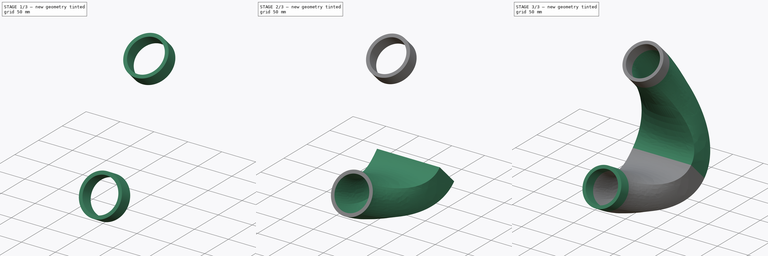
[diagram: build sequence overview — one tinted view per stage of 3, left to right]
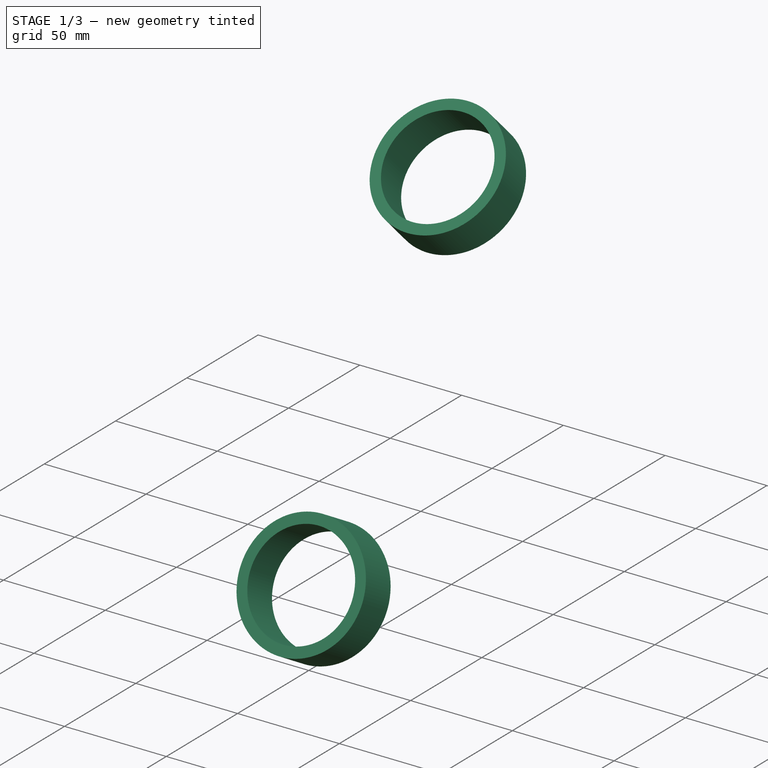
[diagram: stage 1 of 3 — iso view after this stage's code; geometry added in this stage tinted green]
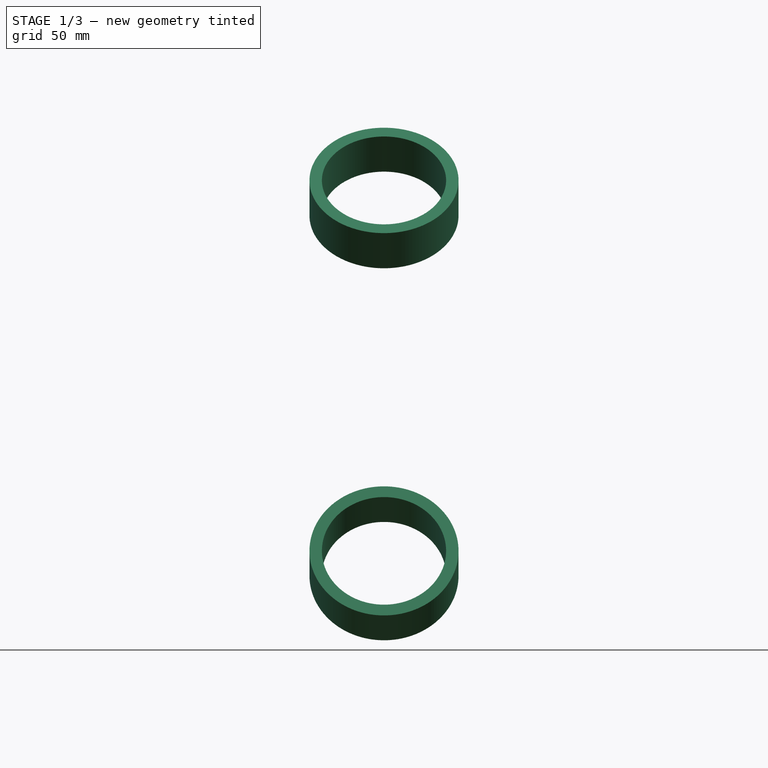
[diagram: stage 1 of 3 — front view after this stage's code; geometry added in this stage tinted green]
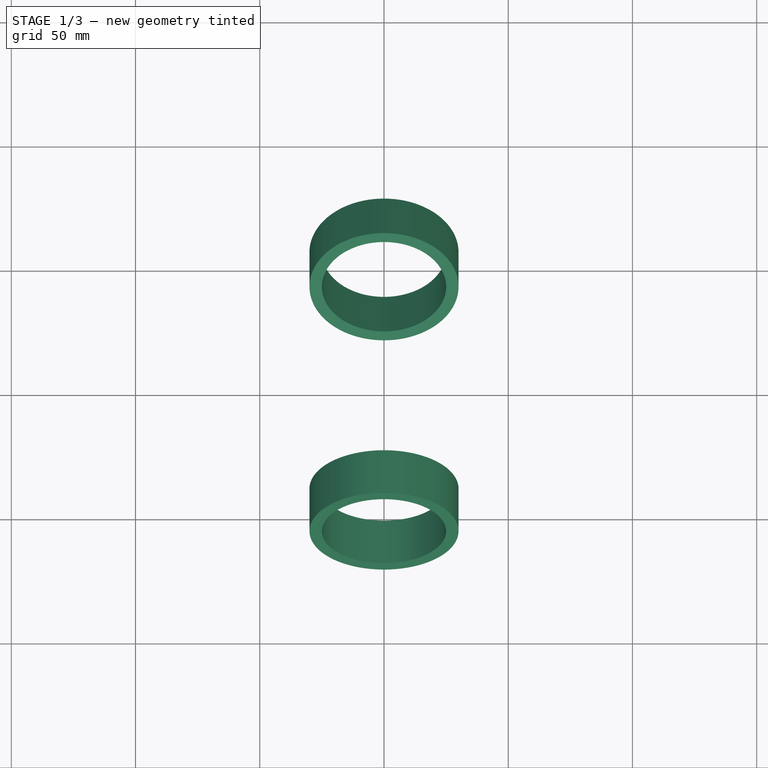
[diagram: stage 1 of 3 — top view after this stage's code; geometry added in this stage tinted green]
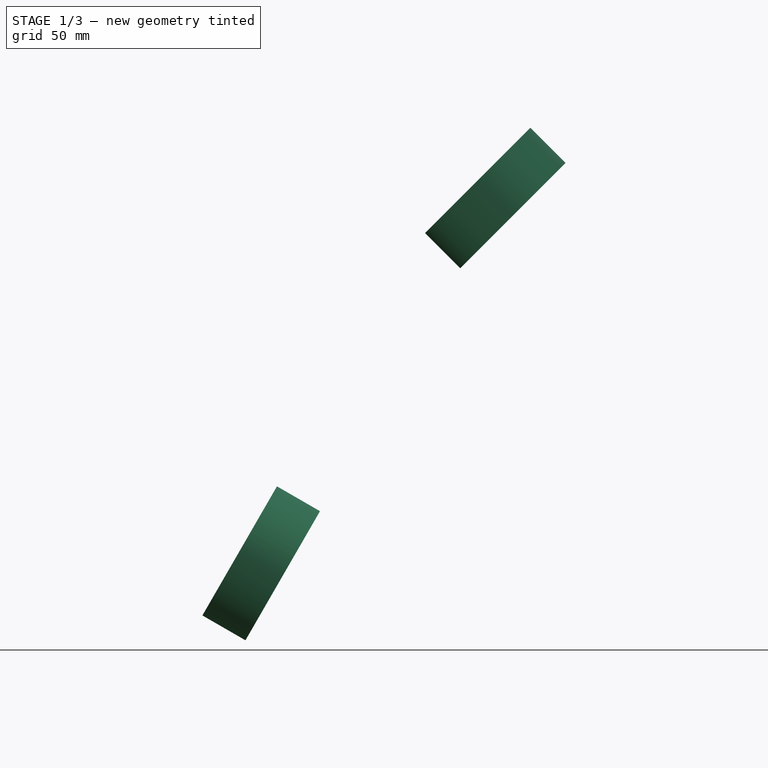
[diagram: stage 1 of 3 — right view after this stage's code; geometry added in this stage tinted green]
FCSTD DOCUMENT  (FreeCAD 0.22R35822 (Git))
Label: blendsolid_test_3
License: Creative Commons Attribution
LicenseURL: http://creativecommons.org/licenses/by/4.0/
objects: Part::Extrusion×3, Sketcher::SketchObject×2, Part::FeaturePython×2, Part::MultiFuse×1
note: 8 computed .brp shape members not serialized (recipe doc carries the construction recipe); baked Part::Feature solids carry a one-line shape summary decoded from their .brp

FEATURE [Part::Extrusion] Extrude001
  Base = -> Sketch001
  Dir = (0,0,1)
  DirMode = 2
  FaceMakerClass = Part::FaceMakerBullseye
  LengthFwd = 20
  LengthRev = 0
  Placement = pos=(0,-138,13.8564) rot=(1,0,0;1.0472rad)
  Solid = true
  Symmetric = false
FEATURE [Part::Extrusion] Extrude002
  Base = -> Sketch001
  Dir = (0,0,1)
  DirMode = 2
  FaceMakerClass = Part::FaceMakerBullseye
  LengthFwd = 20
  LengthRev = 0
  Placement = pos=(0,-45.369,158.813) rot=(-1,0,0;5.49779rad)
  Solid = true
  Symmetric = false
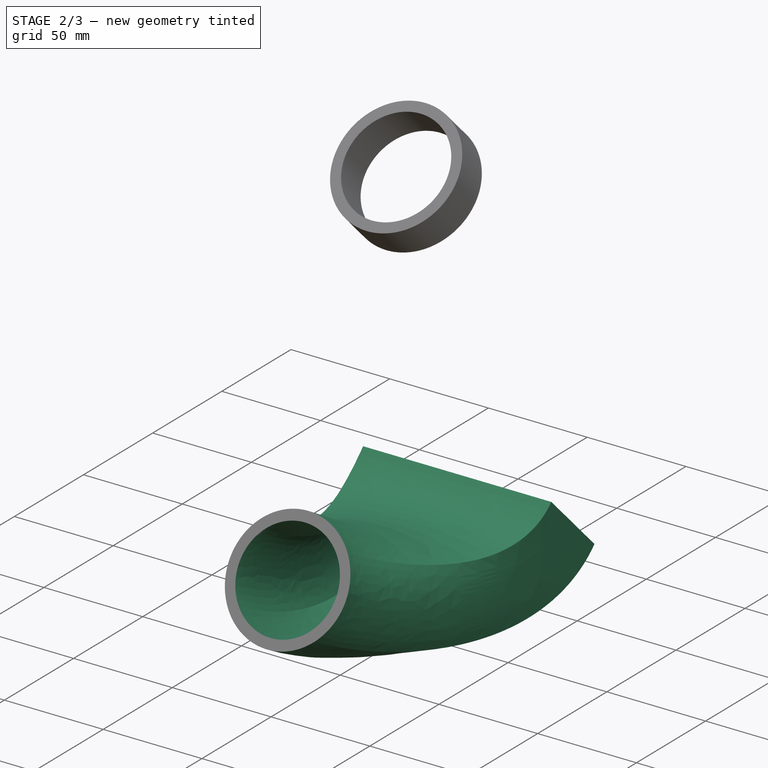
[diagram: stage 2 of 3 — iso view after this stage's code; geometry added in this stage tinted green]
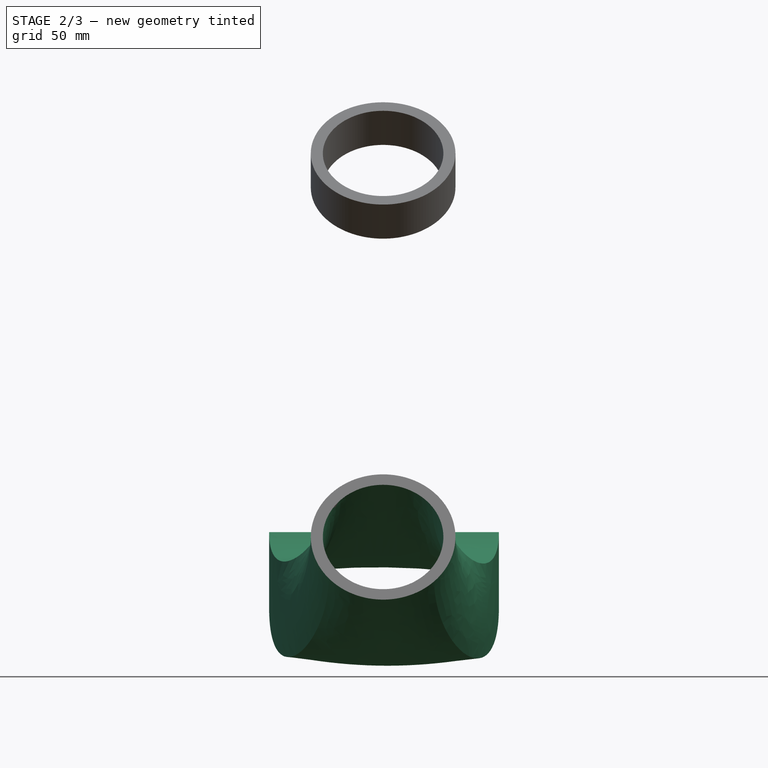
[diagram: stage 2 of 3 — front view after this stage's code; geometry added in this stage tinted green]
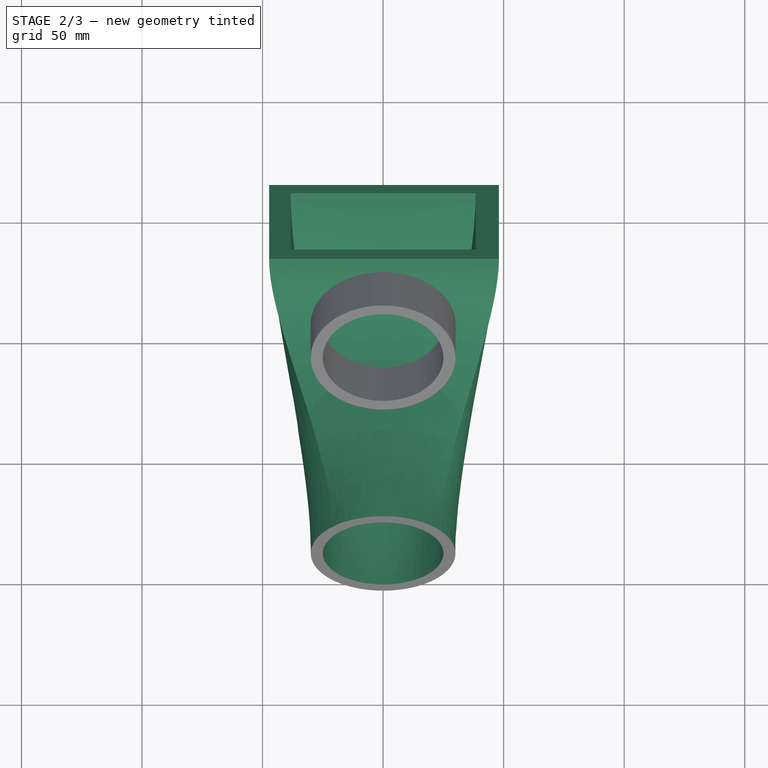
[diagram: stage 2 of 3 — top view after this stage's code; geometry added in this stage tinted green]
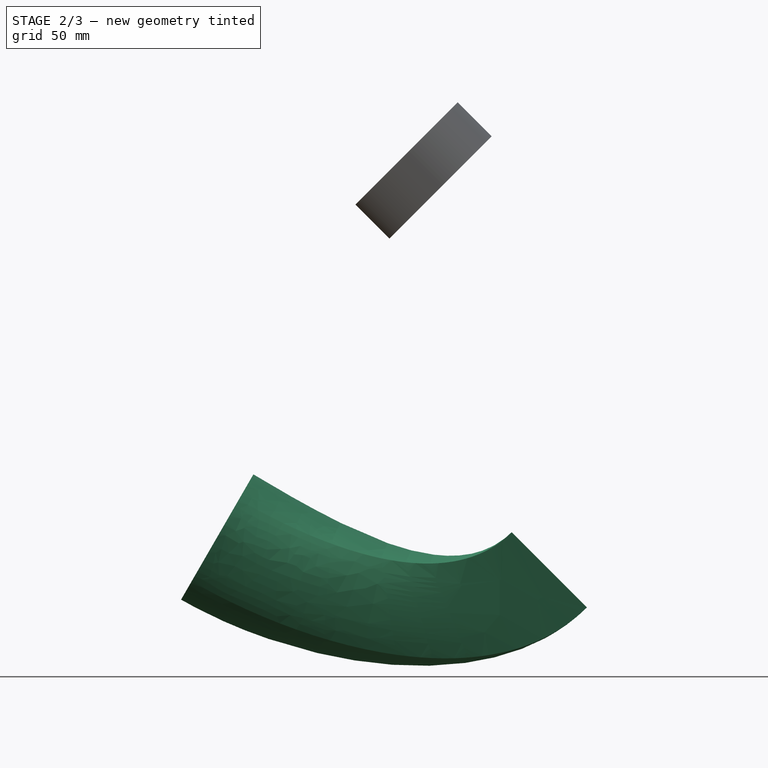
[diagram: stage 2 of 3 — right view after this stage's code; geometry added in this stage tinted green]
FEATURE [Sketcher::SketchObject] Sketch  label="Oval Sketch"
  FullyConstrained = false
  MapMode = 5
  Placement = pos=(0,0,0) rot=(1,0,0;1.5708rad)
  sketch-geometry (10):
    g0: LineSegment StartX=16.7935 StartY=-38.3549 StartZ=0 EndX=16.7935 EndY=38.3549 EndZ=0
    g1: LineSegment StartX=-16.7935 StartY=-38.3549 StartZ=0 EndX=-16.7935 EndY=38.3549 EndZ=0
    g2: LineSegment StartX=-2e-16 StartY=40 StartZ=0 EndX=2e-16 EndY=-40 EndZ=0
    g3: GeomPoint X=0 Y=0 Z=0
    g4: LineSegment StartX=22.4312 StartY=-48.0249 StartZ=0 EndX=22.4312 EndY=47.2883 EndZ=0
    g5: LineSegment StartX=-21.6966 StartY=-48.0249 StartZ=0 EndX=-21.6966 EndY=47.2883 EndZ=0
    g6: LineSegment StartX=-21.6966 StartY=47.2883 StartZ=0 EndX=22.4312 EndY=47.2883 EndZ=0
    g7: LineSegment StartX=-16.7935 StartY=38.3549 StartZ=0 EndX=16.7935 EndY=38.3549 EndZ=0
    g8: LineSegment StartX=-16.7935 StartY=-38.3549 StartZ=0 EndX=16.7935 EndY=-38.3549 EndZ=0
    g9: LineSegment StartX=-21.6966 StartY=-48.0249 StartZ=0 EndX=22.4312 EndY=-48.0249 EndZ=0
  constraints (18):
    c: Vertical(g0)
    c: Coincident(g3,g-1)
    c: Vertical(g4)
    c: Coincident(g6,g5)
    c: Coincident(g6,g4)
    c: Coincident(g7,g1)
    c: Coincident(g7,g0)
    c: Horizontal(g7)
    c: Coincident(g8,g1)
    c: Coincident(g8,g0)
    c: Horizontal(g8)
    c: Coincident(g9,g5)
    c: Coincident(g9,g4)
    c: Horizontal(g6)
    c: Horizontal(g9)
    c: Symmetric(g1,g0,g3)
    c: Vertical(g1)
    c: Vertical(g5)
FEATURE [Sketcher::SketchObject] Sketch001  label="Round Sketch"
  AttachmentOffset = pos=(-27,-45,80) rot=(0,1,0;-0.785398rad)
  FullyConstrained = false
  MapMode = 5
  sketch-geometry (12):
    g0: Circle CenterX=0 CenterY=0 CenterZ=0 NormalX=0 NormalY=0 NormalZ=1 AngleXU=0 Radius=25
    g1: Circle CenterX=0 CenterY=0 CenterZ=0 NormalX=0 NormalY=0 NormalZ=1 AngleXU=0 Radius=30
    g2: ArcOfCircle CenterX=0 CenterY=0 CenterZ=0 NormalX=0 NormalY=0 NormalZ=1 AngleXU=0 Radius=30 StartAngle=0.640705 EndAngle=2.35619
    g3: ArcOfCircle CenterX=0 CenterY=0 CenterZ=0 NormalX=0 NormalY=0 NormalZ=1 AngleXU=0 Radius=30 StartAngle=3.86047 EndAngle=5.49779
    g4: ArcOfCircle CenterX=0 CenterY=0 CenterZ=0 NormalX=0 NormalY=0 NormalZ=1 AngleXU=0 Radius=30 StartAngle=5.49779 EndAngle=6.92389
    g5: ArcOfCircle CenterX=-9.3e-15 CenterY=1.49e-14 CenterZ=0 NormalX=0 NormalY=0 NormalZ=1 AngleXU=0 Radius=25 StartAngle=2.35619 EndAngle=3.82732
    g6: LineSegment StartX=21.2132 StartY=-21.2132 StartZ=0 EndX=-21.2132 EndY=21.2132 EndZ=0
    g7: LineSegment StartX=17.6777 StartY=-17.6777 StartZ=0 EndX=-17.6777 EndY=17.6777 EndZ=0
    g8: ArcOfCircle CenterX=2.6e-15 CenterY=9e-16 CenterZ=0 NormalX=0 NormalY=0 NormalZ=1 AngleXU=0 Radius=30 StartAngle=2.35619 EndAngle=3.86047
    g9: ArcOfCircle CenterX=-9.3e-15 CenterY=1.49e-14 CenterZ=0 NormalX=0 NormalY=0 NormalZ=1 AngleXU=0 Radius=25 StartAngle=0.620465 EndAngle=2.35619
    g10: ArcOfCircle CenterX=0 CenterY=0 CenterZ=0 NormalX=0 NormalY=0 NormalZ=1 AngleXU=0 Radius=25 StartAngle=3.82732 EndAngle=5.49779
    g11: ArcOfCircle CenterX=0 CenterY=0 CenterZ=0 NormalX=0 NormalY=0 NormalZ=1 AngleXU=0 Radius=25 StartAngle=5.49779 EndAngle=6.90365
  constraints (30):
    c: Coincident(g1,g0)
    c: Diameter(g1) = 60
    c: Coincident(g3,g4)
    c: Coincident(g3,g2)
    c: PointOnObject(g7,g0)
    c: Coincident(g0,g-1)
    c: Diameter(g0) = 50
    c: Coincident(g2,g-1)
    c: Coincident(g4,g2)
    c: Coincident(g4,g2)
    c: Coincident(g6,g3)
    c: Coincident(g6,g2)
    c: PointOnObject(g2,g7)
    c: PointOnObject(g2,g6)
    c: PointOnObject(g7,g6)
    c: Coincident(g8,g3)
    c: Coincident(g8,g2)
    c: Angle(g-1,g6) = 2.35619
    c: Coincident(g9,g5)
    c: Coincident(g9,g5)
    c: Equal(g8,g1)
    c: Equal(g5,g0)
    c: Coincident(g5,g7)
    c: Coincident(g10,g2)
    c: Coincident(g11,g2)
    c: Coincident(g10,g5)
    c: Coincident(g10,g7)
    c: Coincident(g11,g10)
    c: Coincident(g11,g9)
    c: PointOnObject(g2,g1)
FEATURE [Part::Extrusion] Extrude
  Base = -> Sketch
  Dir = (0,-1,2e-16)
  DirMode = 2
  FaceMakerClass = Part::FaceMakerBullseye
  LengthFwd = -20
  LengthRev = 0
  Placement = pos=(0,0,0) rot=(-0.357407,0.862856,0.357407;4.56541rad)
  Solid = true
  Symmetric = false
FEATURE [Part::FeaturePython] Blend_Solid001  # WARN: FeaturePython — macro-defined, semantics opaque (R4)
  Algo = 0
  AutoScale = 0
  Continuity1 = 1
  Continuity2 = 1
  Fuse = false
  MatchingShapes = -> [Extrude,Extrude001]
  Offset = (2) [(3,3,-1),(1,0,-1)]
  Samples = 20
  Scale1 = [166.479,156.167,145.7,135.348,125.461,116.472]
  Scale2 = [-135.348,-125.461,-116.472,-166.479,-156.167,-145.7]
  ScaleSamples = 6
  ShapeType = Solid
  Sources = -> [Extrude,Extrude001]
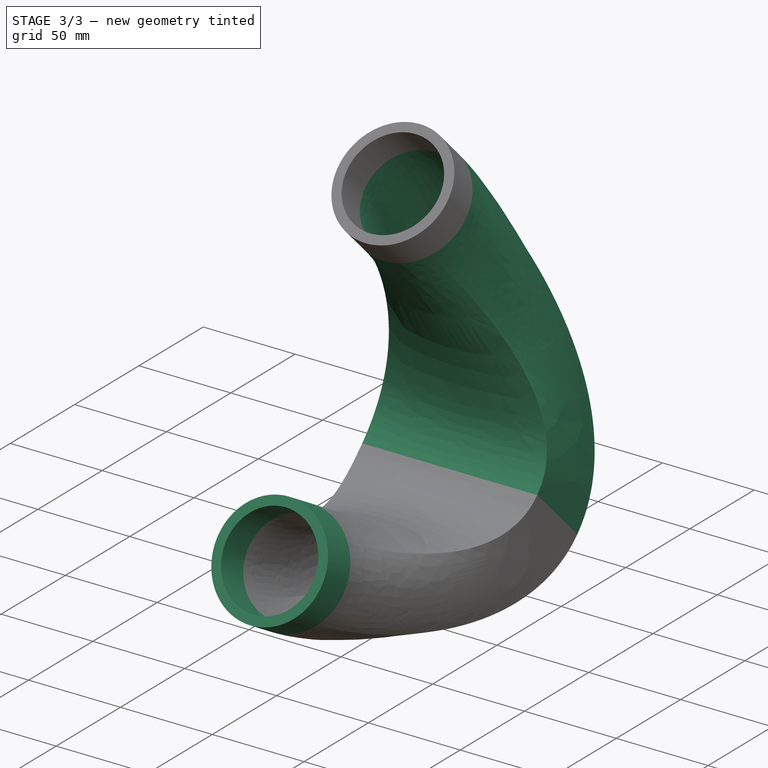
[diagram: stage 3 of 3 — iso view after this stage's code; geometry added in this stage tinted green]
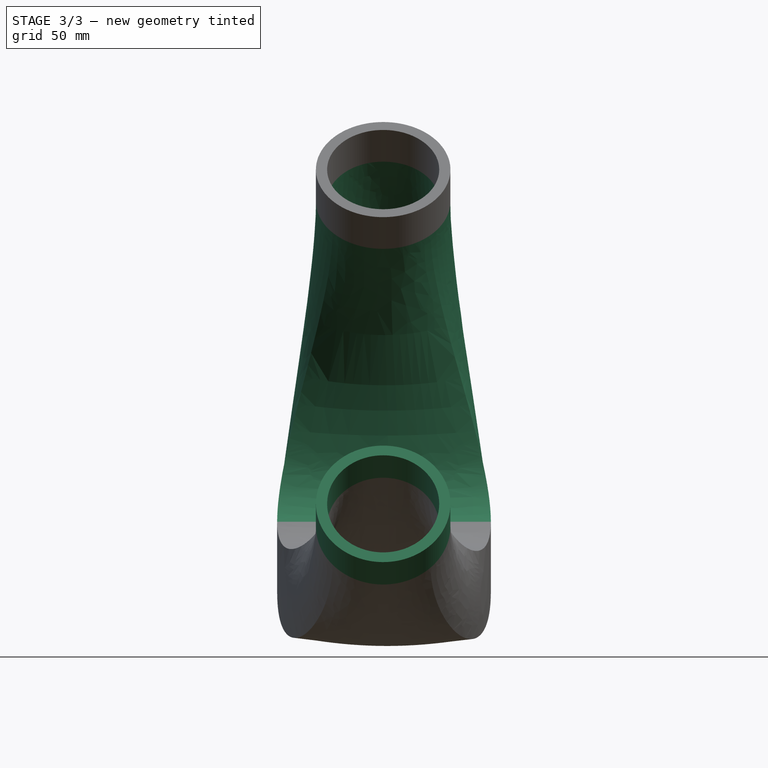
[diagram: stage 3 of 3 — front view after this stage's code; geometry added in this stage tinted green]
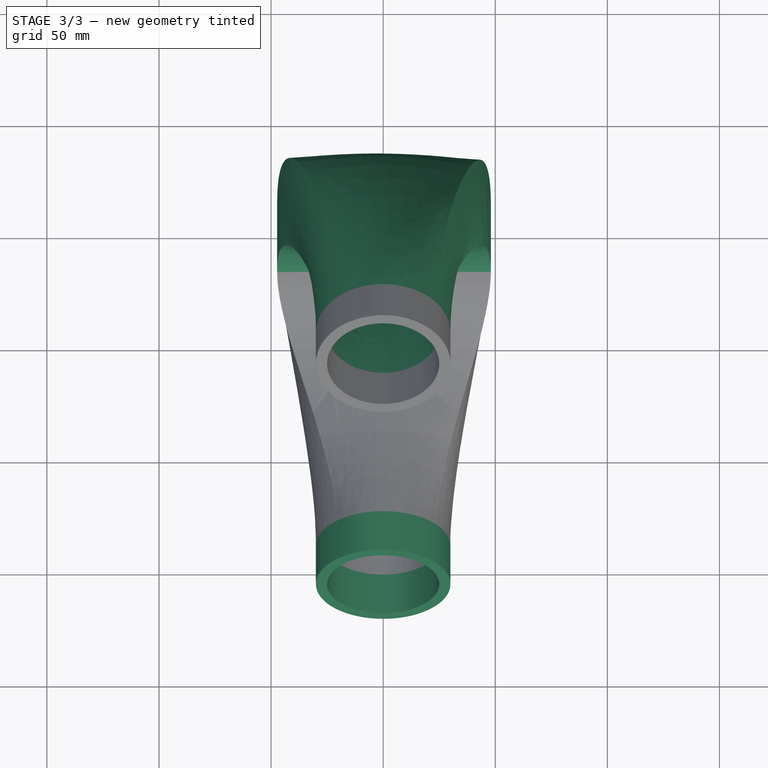
[diagram: stage 3 of 3 — top view after this stage's code; geometry added in this stage tinted green]
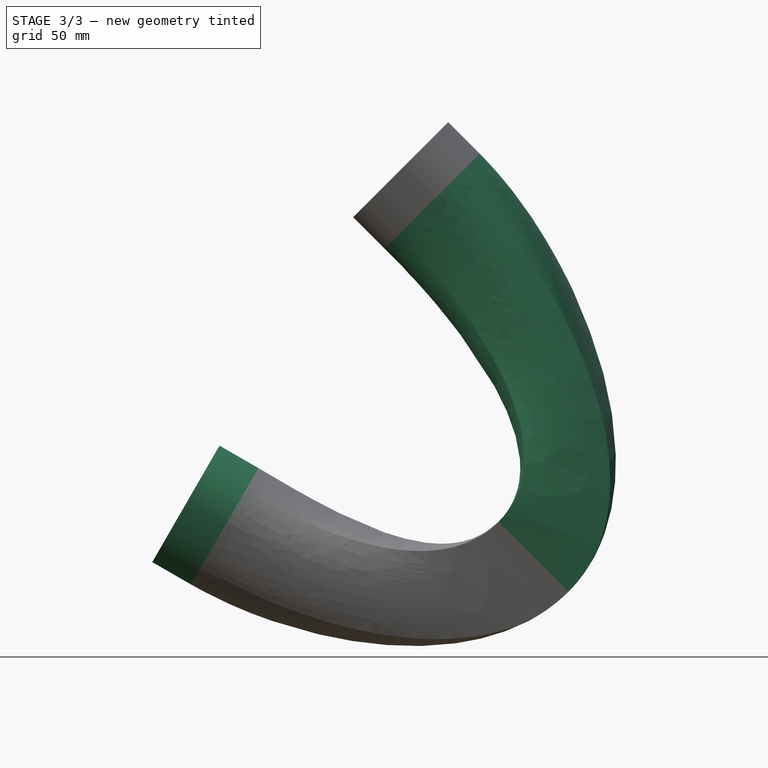
[diagram: stage 3 of 3 — right view after this stage's code; geometry added in this stage tinted green]
FEATURE [Part::FeaturePython] Blend_Solid  # WARN: FeaturePython — macro-defined, semantics opaque (R4)
  AutoScale = 0
  Continuity1 = 1
  Continuity2 = 1
  Fuse = false
  Samples = 20
  Scale1 = [194.394,182.599,170.688,159.019,148.007,138.1]
  Scale2 = [-170.688,-182.599,-194.394,-138.1,-148.007,-159.019]
  ScaleSamples = 6
  ShapeType = Solid
  Sources = -> [Blend_Solid001,Extrude002]
FEATURE [Part::MultiFuse] Fusion
  Shapes = -> [Extrude001,Blend_Solid001,Extrude002,Blend_Solid]
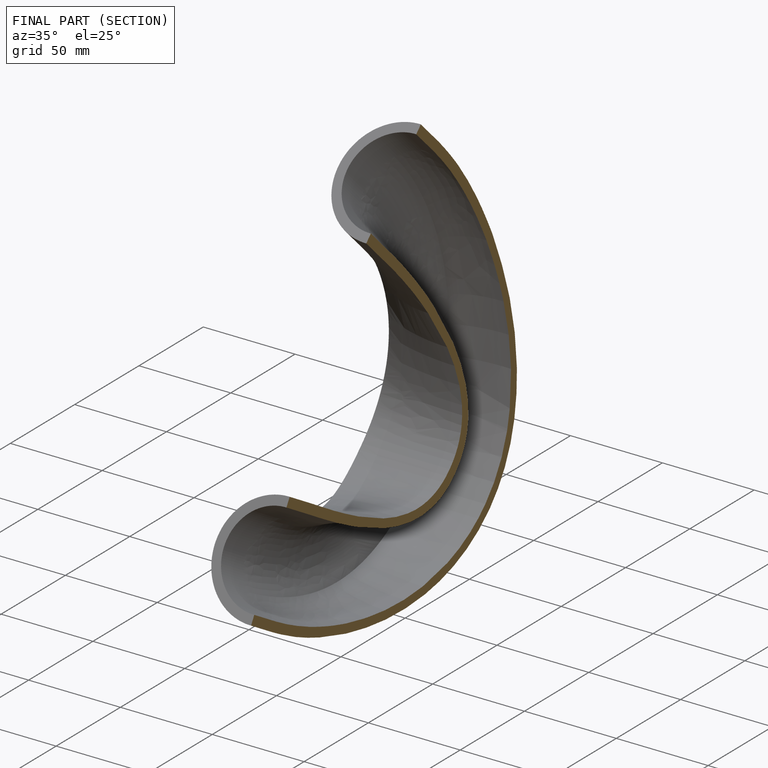
[diagram: finished part — half-section view (interior)]
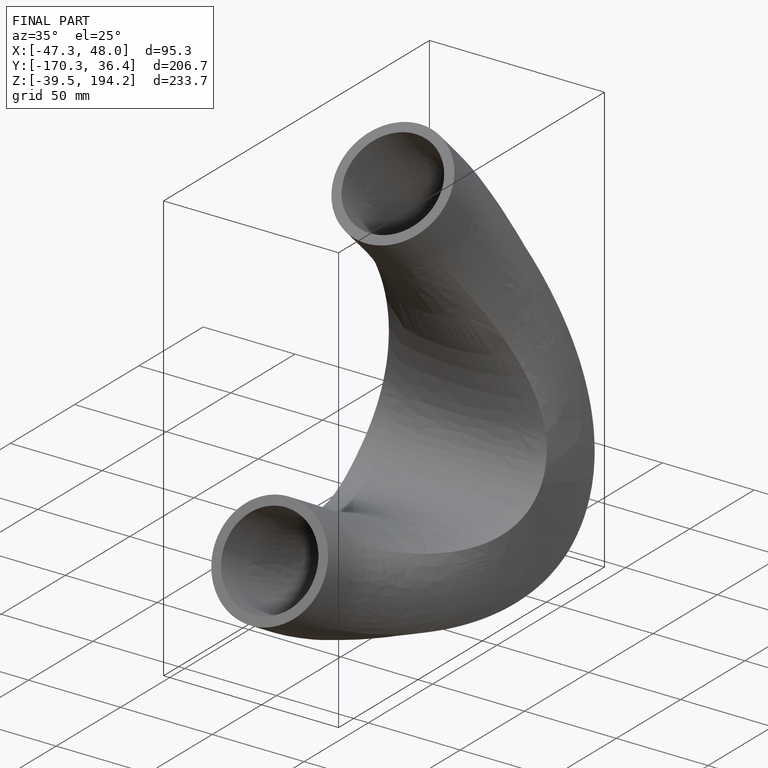
[diagram: finished part — iso view with bounding-box wireframe]
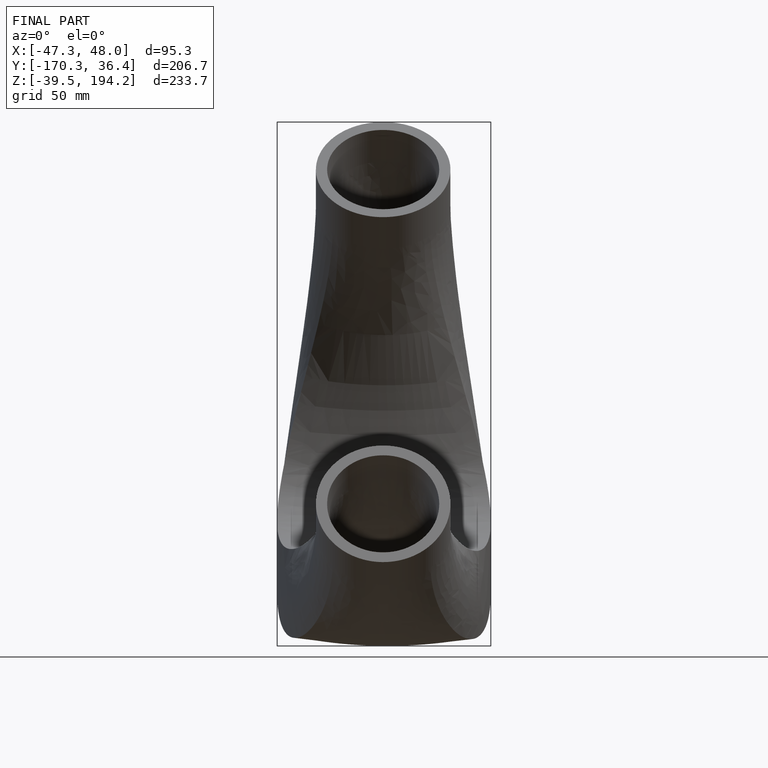
[diagram: finished part — front view with bounding-box wireframe]
